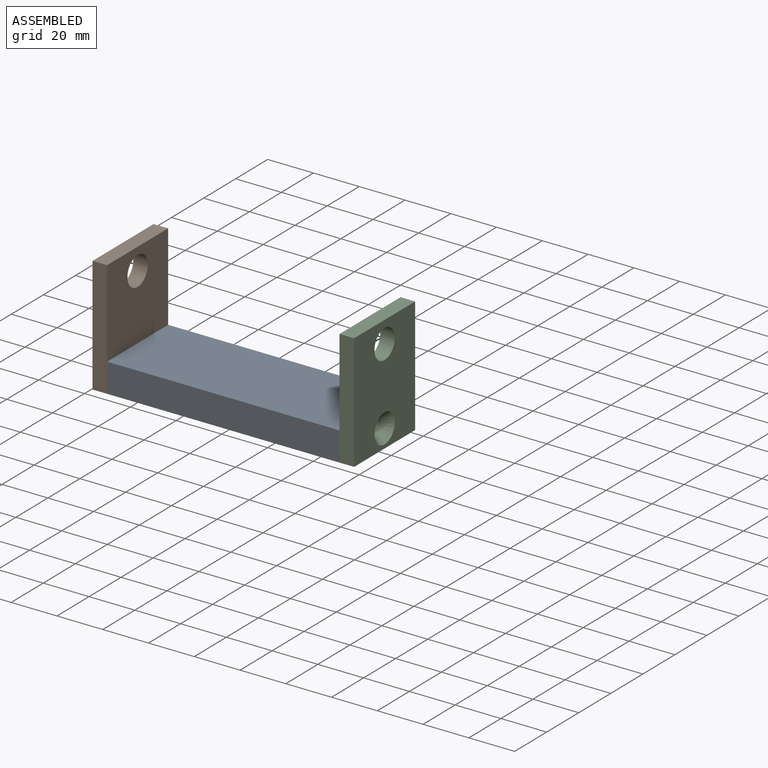
[diagram: assembled view]
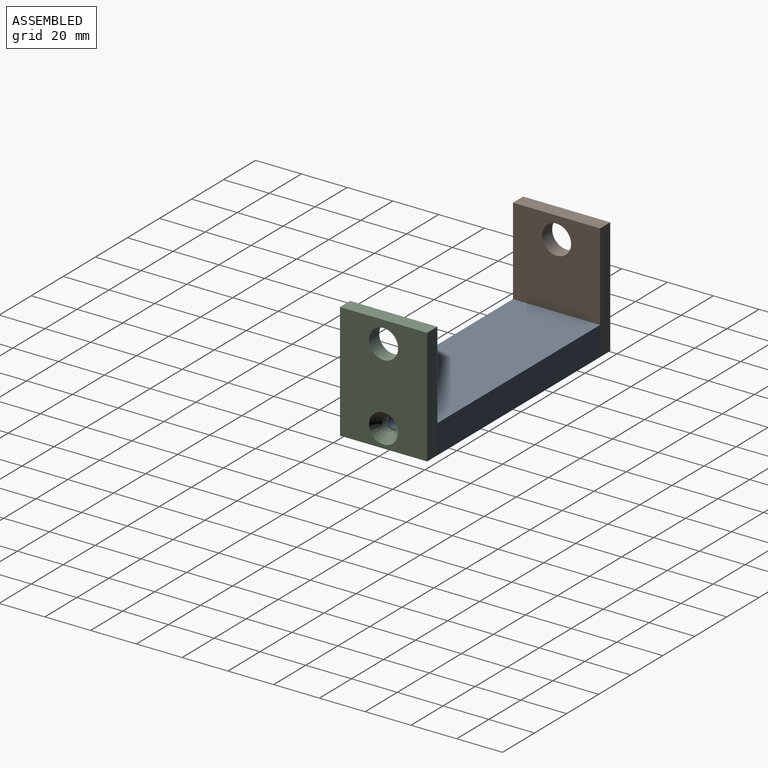
[diagram: assembled view, second angle]
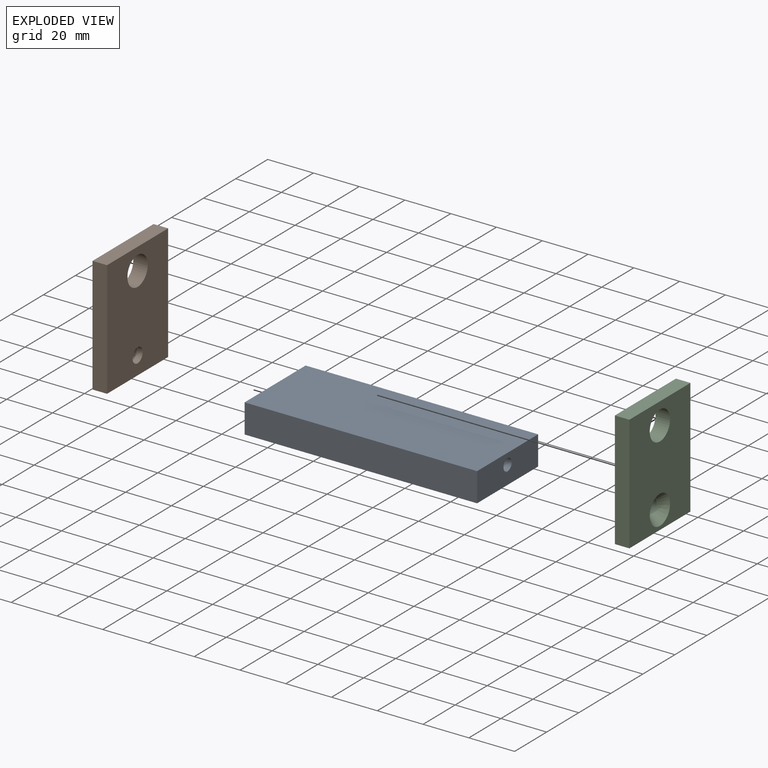
[diagram: exploded view]
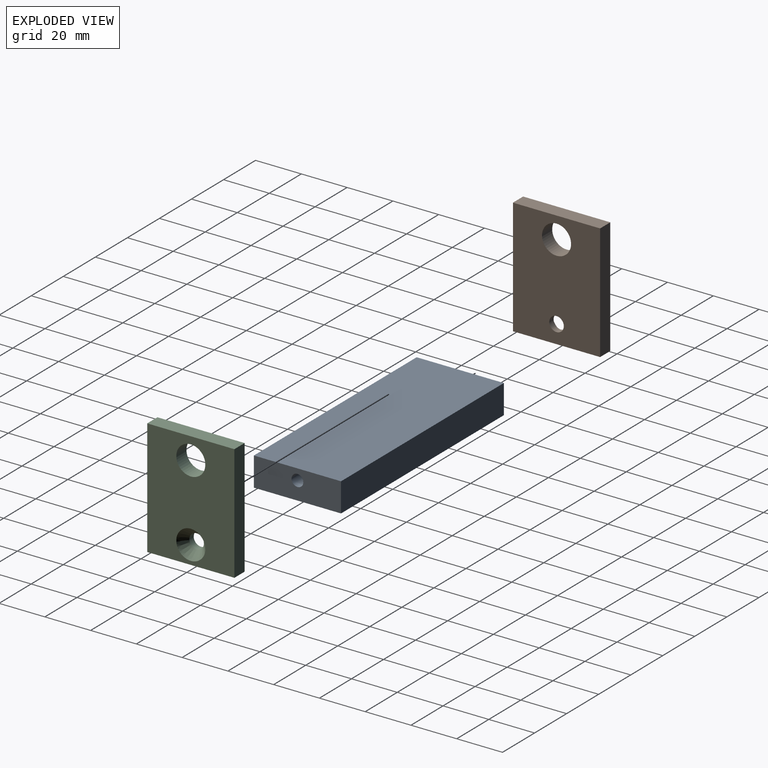
[diagram: exploded view, second angle]
ASSEMBLY  parts=3 mates=2
PART A: 10 faces, bbox 101.6x38.1x12.7 mm
  f0: plane 38.1x12.7mm, normal (1,0,0), area 463mm2, adj f1,f3,f4,f5,f7
  f1: plane 101.6x12.7mm, normal (0,1,0), area 1290.3mm2, adj f0,f2,f4,f5
  f2: plane 38.1x12.7mm, normal (-1,0,0), area 463mm2, adj f1,f3,f4,f5,f9
  f3: plane 101.6x12.7mm, normal (0,-1,0), area 1290.3mm2, adj f0,f2,f4,f5
  f4: plane 101.6x38.1mm, normal (0,0,1), area 3871mm2, adj f0,f1,f2,f3
  f5: plane 101.6x38.1mm, normal (0,0,-1), area 3871mm2, adj f0,f1,f2,f3
  f6: cone r=0mm half-angle=59deg, axis (1,0,0), area 24.4mm2, adj f7
  f7: cylinder r=2.58mm len=28.58mm, axis (1,0,0), area 463.1mm2, adj f0,f6
  f8: cone r=0mm half-angle=59deg, axis (-1,0,0), area 24.4mm2, adj f9
  f9: cylinder r=2.58mm len=28.58mm, axis (-1,0,0), area 463.1mm2, adj f2,f8
PART B: 9 faces, bbox 6.4x38.1x50.8 mm
  f0: plane 50.8x6.35mm, normal (0,-1,0), area 322.6mm2, adj f1,f3,f4,f5
  f1: plane 38.1x6.35mm, normal (0,0,-1), area 241.9mm2, adj f0,f2,f4,f5
  f2: plane 50.8x6.35mm, normal (0,1,0), area 322.6mm2, adj f1,f3,f4,f5
  f3: plane 38.1x6.35mm, normal (0,0,1), area 241.9mm2, adj f0,f2,f4,f5
  f4: plane 50.8x38.1mm, normal (1,0,0), area 1682.1mm2, adj f0,f1,f2,f3,f7,f8
  f5: plane 50.8x38.1mm, normal (-1,0,0), area 1777.1mm2, adj f0,f1,f2,f3,f6,f8
  f6: cylinder r=3.17mm len=6.35mm, axis (1,0,0), area 53.8mm2, adj f5,f7
  f7: cone r=3.17mm half-angle=41deg, axis (1,0,0), area 144.8mm2, adj f4,f6
  f8: cylinder r=6.35mm len=12.7mm, axis (1,0,0), area 253.4mm2, adj f4,f5
PART C: same geometry as B
PLACE A at identity fixed
PLACE B rot(axis=(0,0,1),180deg) t=(-50.8,0,0)mm
PLACE C t=(50.8,0,0)mm
MATE fastened C.f6 <-> A.f6  axis (-1,0,0) through (50.8,0,7.94)mm
MATE fastened B.f6 <-> A.f6  axis (1,0,0) through (-50.8,0,7.94)mm
